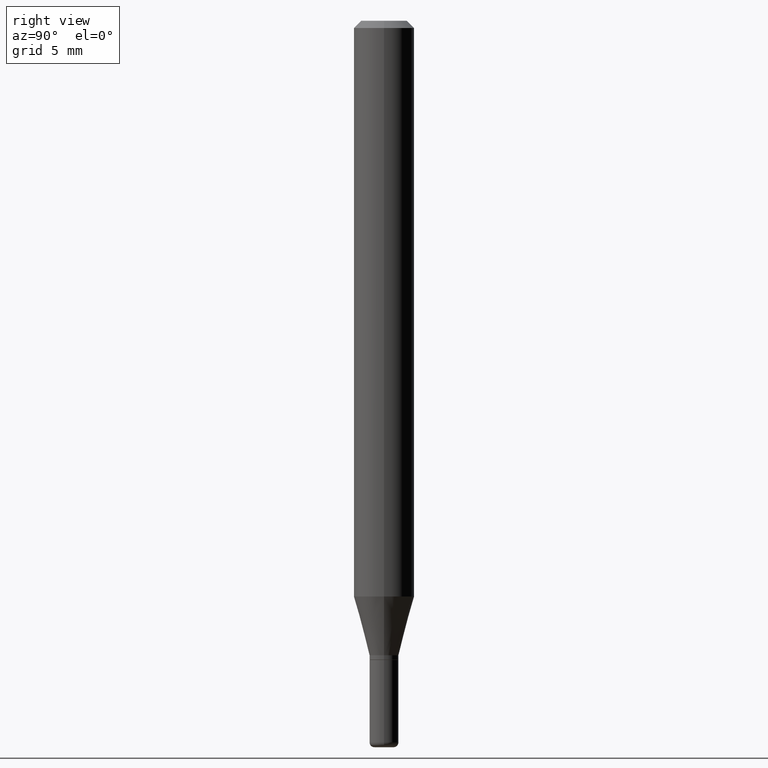
[diagram: clean part render]
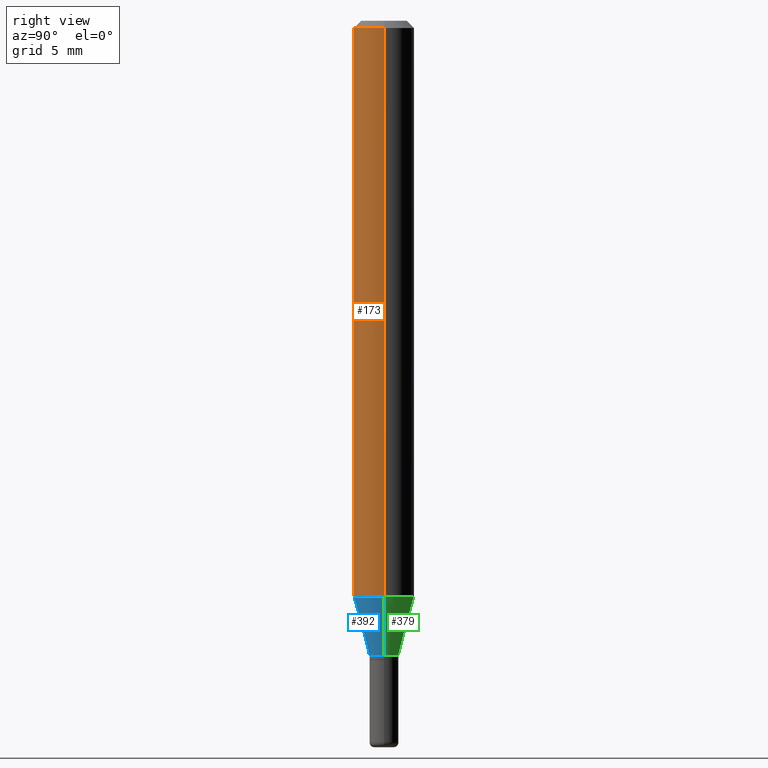
[diagram: same view with three faces highlighted in distinct colors, each labeled with its STEP entity id]
A machine part, right view with three faces highlighted in distinct colors.
Their STEP definitions:

[orange] entity #173 — the highlighted cylindrical surface (edge-blend (fillet) strip) has radius 1.5875 mm, axis along (-0, 0, 1).
#17 = EDGE_CURVE ( 'NONE', #500, #226, #242, .T. ) ;
#21 = CARTESIAN_POINT ( 'NONE',  ( 0.000000000000000000, 0.000000000000000000, 0.000000000000000000 ) ) ;
#32 = AXIS2_PLACEMENT_3D ( 'NONE', #431, #471, #160 ) ;
#49 = AXIS2_PLACEMENT_3D ( 'NONE', #374, #295, #333 ) ;
#63 = VERTEX_POINT ( 'NONE', #395 ) ;
#91 = DIRECTION ( 'NONE',  ( -2.445468806185136877E-29, 3.491481338843145188E-15, 1.000000000000000000 ) ) ;
#138 = CARTESIAN_POINT ( 'NONE',  ( 0.06250000000000000000, -4.364351673553916694E-16, 3.047610484872459871E-30 ) ) ;
#145 = ORIENTED_EDGE ( 'NONE', *, *, #17, .F. ) ;
#158 = EDGE_CURVE ( 'NONE', #340, #63, #317, .T. ) ;
#160 = DIRECTION ( 'NONE',  ( 1.000000000000000000, -6.982962677686266711E-15, 0.000000000000000000 ) ) ;
#163 = ORIENTED_EDGE ( 'NONE', *, *, #158, .T. ) ;
#173 = ADVANCED_FACE ( 'NONE', ( #370 ), #260, .T. ) ;
#198 = EDGE_LOOP ( 'NONE', ( #386, #163, #384, #145 ) ) ;
#226 = VERTEX_POINT ( 'NONE', #330 ) ;
#242 = CIRCLE ( 'NONE', #32, 0.06250000000000000000 ) ;
#256 = DIRECTION ( 'NONE',  ( -2.445468806185136877E-29, 3.491481338843145188E-15, 1.000000000000000000 ) ) ;
#260 = CYLINDRICAL_SURFACE ( 'NONE', #354, 0.06250000000000000000 ) ;
#266 = CARTESIAN_POINT ( 'NONE',  ( -0.06250000000000000000, -3.706263807151618616E-15, -1.188708348754011546 ) ) ;
#273 = VECTOR ( 'NONE', #91, 39.37007874015748143 ) ;
#295 = DIRECTION ( 'NONE',  ( -2.445468806185136597E-29, 3.491481338843145583E-15, 1.000000000000000000 ) ) ;
#317 = CIRCLE ( 'NONE', #49, 0.06250000000000000000 ) ;
#330 = CARTESIAN_POINT ( 'NONE',  ( 0.06250000000000000000, -4.888073874380378612E-16, -0.01499999999999970281 ) ) ;
#333 = DIRECTION ( 'NONE',  ( 1.000000000000000000, -6.982962677686270655E-15, 0.000000000000000000 ) ) ;
#340 = VERTEX_POINT ( 'NONE', #266 ) ;
#354 = AXIS2_PLACEMENT_3D ( 'NONE', #21, #507, #367 ) ;
#356 = CARTESIAN_POINT ( 'NONE',  ( -0.06250000000000000000, -1.657273408692100948E-15, -0.01499999999999970281 ) ) ;
#367 = DIRECTION ( 'NONE',  ( 1.000000000000000000, -6.982962677686266711E-15, 4.876176775795935793E-29 ) ) ;
#370 = FACE_OUTER_BOUND ( 'NONE', #198, .T. ) ;
#374 = CARTESIAN_POINT ( 'NONE',  ( 2.906949186529777550E-29, -4.150353017001681232E-15, -1.188708348754011546 ) ) ;
#384 = ORIENTED_EDGE ( 'NONE', *, *, #412, .T. ) ;
#386 = ORIENTED_EDGE ( 'NONE', *, *, #396, .F. ) ;
#395 = CARTESIAN_POINT ( 'NONE',  ( 0.06250000000000000000, -4.586788184357073690E-15, -1.188708348754011546 ) ) ;
#396 = EDGE_CURVE ( 'NONE', #340, #500, #456, .T. ) ;
#412 = EDGE_CURVE ( 'NONE', #63, #226, #484, .T. ) ;
#431 = CARTESIAN_POINT ( 'NONE',  ( 3.668203209277632395E-31, -5.237222008264614861E-17, -0.01499999999999970281 ) ) ;
#448 = VECTOR ( 'NONE', #256, 39.37007874015748143 ) ;
#456 = LINE ( 'NONE', #461, #448 ) ;
#461 = CARTESIAN_POINT ( 'NONE',  ( -0.06250000000000000000, 4.440892098500626162E-16, -3.074334431409316114E-30 ) ) ;
#471 = DIRECTION ( 'NONE',  ( -2.445468806185136597E-29, 3.491481338843145583E-15, 1.000000000000000000 ) ) ;
#484 = LINE ( 'NONE', #138, #273 ) ;
#500 = VERTEX_POINT ( 'NONE', #356 ) ;
#507 = DIRECTION ( 'NONE',  ( -2.445468806185136597E-29, 3.491481338843145583E-15, 1.000000000000000000 ) ) ;

[blue] entity #392 — the highlighted conical surface has half-angle 15 deg.
#22 = DIRECTION ( 'NONE',  ( -2.445468806185136597E-29, 3.491481338843145583E-15, 1.000000000000000000 ) ) ;
#27 = ORIENTED_EDGE ( 'NONE', *, *, #305, .T. ) ;
#36 = EDGE_CURVE ( 'NONE', #195, #63, #255, .T. ) ;
#43 = AXIS2_PLACEMENT_3D ( 'NONE', #181, #499, #400 ) ;
#49 = AXIS2_PLACEMENT_3D ( 'NONE', #374, #295, #333 ) ;
#56 = ORIENTED_EDGE ( 'NONE', *, *, #36, .T. ) ;
#63 = VERTEX_POINT ( 'NONE', #395 ) ;
#101 = CARTESIAN_POINT ( 'NONE',  ( 0.02999999999999995726, -4.783329434215109894E-15, -1.310000000000000275 ) ) ;
#114 = CONICAL_SURFACE ( 'NONE', #378, 0.02999999999999995726, 0.2617993877991494633 ) ;
#158 = EDGE_CURVE ( 'NONE', #340, #63, #317, .T. ) ;
#179 = EDGE_LOOP ( 'NONE', ( #415, #27, #56, #462 ) ) ;
#181 = CARTESIAN_POINT ( 'NONE',  ( 3.203564136102529457E-29, -4.573840553884521577E-15, -1.310000000000000275 ) ) ;
#185 = CARTESIAN_POINT ( 'NONE',  ( 3.203564136102529457E-29, -4.573840553884521577E-15, -1.310000000000000275 ) ) ;
#187 = DIRECTION ( 'NONE',  ( 1.000000000000000000, -6.982962677686277755E-15, 0.000000000000000000 ) ) ;
#195 = VERTEX_POINT ( 'NONE', #101 ) ;
#244 = VECTOR ( 'NONE', #263, 39.37007874015748854 ) ;
#255 = LINE ( 'NONE', #440, #441 ) ;
#263 = DIRECTION ( 'NONE',  ( -0.2588190451025207395, 5.211531920934546309E-15, 0.9659258262890682012 ) ) ;
#266 = CARTESIAN_POINT ( 'NONE',  ( -0.06250000000000000000, -3.706263807151618616E-15, -1.188708348754011546 ) ) ;
#295 = DIRECTION ( 'NONE',  ( -2.445468806185136597E-29, 3.491481338843145583E-15, 1.000000000000000000 ) ) ;
#297 = LINE ( 'NONE', #328, #244 ) ;
#305 = EDGE_CURVE ( 'NONE', #352, #195, #511, .T. ) ;
#317 = CIRCLE ( 'NONE', #49, 0.06250000000000000000 ) ;
#322 = DIRECTION ( 'NONE',  ( 0.2588190451025207395, 1.565188264969626109E-15, 0.9659258262890682012 ) ) ;
#328 = CARTESIAN_POINT ( 'NONE',  ( -0.02999999999999995726, -4.360677733156492121E-15, -1.310000000000000275 ) ) ;
#333 = DIRECTION ( 'NONE',  ( 1.000000000000000000, -6.982962677686270655E-15, 0.000000000000000000 ) ) ;
#340 = VERTEX_POINT ( 'NONE', #266 ) ;
#352 = VERTEX_POINT ( 'NONE', #371 ) ;
#371 = CARTESIAN_POINT ( 'NONE',  ( -0.02999999999999995726, -4.033470770154055368E-15, -1.310000000000000275 ) ) ;
#374 = CARTESIAN_POINT ( 'NONE',  ( 2.906949186529777550E-29, -4.150353017001681232E-15, -1.188708348754011546 ) ) ;
#375 = FACE_OUTER_BOUND ( 'NONE', #179, .T. ) ;
#378 = AXIS2_PLACEMENT_3D ( 'NONE', #185, #22, #187 ) ;
#392 = ADVANCED_FACE ( 'NONE', ( #375 ), #114, .T. ) ;
#395 = CARTESIAN_POINT ( 'NONE',  ( 0.06250000000000000000, -4.586788184357073690E-15, -1.188708348754011546 ) ) ;
#400 = DIRECTION ( 'NONE',  ( 1.000000000000000000, -6.982962677686277755E-15, 0.000000000000000000 ) ) ;
#415 = ORIENTED_EDGE ( 'NONE', *, *, #416, .F. ) ;
#416 = EDGE_CURVE ( 'NONE', #352, #340, #297, .T. ) ;
#440 = CARTESIAN_POINT ( 'NONE',  ( 0.02999999999999995726, -4.783329434215109894E-15, -1.310000000000000275 ) ) ;
#441 = VECTOR ( 'NONE', #322, 39.37007874015748854 ) ;
#462 = ORIENTED_EDGE ( 'NONE', *, *, #158, .F. ) ;
#499 = DIRECTION ( 'NONE',  ( -2.445468806185136597E-29, 3.491481338843145583E-15, 1.000000000000000000 ) ) ;
#511 = CIRCLE ( 'NONE', #43, 0.02999999999999995726 ) ;

[green] entity #379 — the highlighted conical surface has half-angle 15 deg.
#16 = FACE_OUTER_BOUND ( 'NONE', #494, .T. ) ;
#36 = EDGE_CURVE ( 'NONE', #195, #63, #255, .T. ) ;
#63 = VERTEX_POINT ( 'NONE', #395 ) ;
#68 = DIRECTION ( 'NONE',  ( 1.000000000000000000, -6.982962677686270655E-15, 0.000000000000000000 ) ) ;
#98 = AXIS2_PLACEMENT_3D ( 'NONE', #259, #489, #414 ) ;
#101 = CARTESIAN_POINT ( 'NONE',  ( 0.02999999999999995726, -4.783329434215109894E-15, -1.310000000000000275 ) ) ;
#195 = VERTEX_POINT ( 'NONE', #101 ) ;
#196 = CARTESIAN_POINT ( 'NONE',  ( 2.906949186529777550E-29, -4.150353017001681232E-15, -1.188708348754011546 ) ) ;
#214 = CIRCLE ( 'NONE', #98, 0.02999999999999995726 ) ;
#221 = DIRECTION ( 'NONE',  ( -2.445468806185136597E-29, 3.491481338843145583E-15, 1.000000000000000000 ) ) ;
#229 = DIRECTION ( 'NONE',  ( 1.000000000000000000, -6.982962677686277755E-15, 0.000000000000000000 ) ) ;
#244 = VECTOR ( 'NONE', #263, 39.37007874015748854 ) ;
#247 = EDGE_CURVE ( 'NONE', #63, #340, #292, .T. ) ;
#255 = LINE ( 'NONE', #440, #441 ) ;
#259 = CARTESIAN_POINT ( 'NONE',  ( 3.203564136102529457E-29, -4.573840553884521577E-15, -1.310000000000000275 ) ) ;
#263 = DIRECTION ( 'NONE',  ( -0.2588190451025207395, 5.211531920934546309E-15, 0.9659258262890682012 ) ) ;
#266 = CARTESIAN_POINT ( 'NONE',  ( -0.06250000000000000000, -3.706263807151618616E-15, -1.188708348754011546 ) ) ;
#292 = CIRCLE ( 'NONE', #324, 0.06250000000000000000 ) ;
#297 = LINE ( 'NONE', #328, #244 ) ;
#322 = DIRECTION ( 'NONE',  ( 0.2588190451025207395, 1.565188264969626109E-15, 0.9659258262890682012 ) ) ;
#324 = AXIS2_PLACEMENT_3D ( 'NONE', #196, #460, #68 ) ;
#328 = CARTESIAN_POINT ( 'NONE',  ( -0.02999999999999995726, -4.360677733156492121E-15, -1.310000000000000275 ) ) ;
#335 = ORIENTED_EDGE ( 'NONE', *, *, #36, .F. ) ;
#340 = VERTEX_POINT ( 'NONE', #266 ) ;
#352 = VERTEX_POINT ( 'NONE', #371 ) ;
#361 = EDGE_CURVE ( 'NONE', #195, #352, #214, .T. ) ;
#369 = ORIENTED_EDGE ( 'NONE', *, *, #247, .F. ) ;
#371 = CARTESIAN_POINT ( 'NONE',  ( -0.02999999999999995726, -4.033470770154055368E-15, -1.310000000000000275 ) ) ;
#379 = ADVANCED_FACE ( 'NONE', ( #16 ), #422, .T. ) ;
#395 = CARTESIAN_POINT ( 'NONE',  ( 0.06250000000000000000, -4.586788184357073690E-15, -1.188708348754011546 ) ) ;
#403 = CARTESIAN_POINT ( 'NONE',  ( 3.203564136102529457E-29, -4.573840553884521577E-15, -1.310000000000000275 ) ) ;
#414 = DIRECTION ( 'NONE',  ( 1.000000000000000000, -6.982962677686277755E-15, 0.000000000000000000 ) ) ;
#416 = EDGE_CURVE ( 'NONE', #352, #340, #297, .T. ) ;
#422 = CONICAL_SURFACE ( 'NONE', #472, 0.02999999999999995726, 0.2617993877991494633 ) ;
#424 = ORIENTED_EDGE ( 'NONE', *, *, #416, .T. ) ;
#440 = CARTESIAN_POINT ( 'NONE',  ( 0.02999999999999995726, -4.783329434215109894E-15, -1.310000000000000275 ) ) ;
#441 = VECTOR ( 'NONE', #322, 39.37007874015748854 ) ;
#460 = DIRECTION ( 'NONE',  ( -2.445468806185136597E-29, 3.491481338843145583E-15, 1.000000000000000000 ) ) ;
#472 = AXIS2_PLACEMENT_3D ( 'NONE', #403, #221, #229 ) ;
#489 = DIRECTION ( 'NONE',  ( -2.445468806185136597E-29, 3.491481338843145583E-15, 1.000000000000000000 ) ) ;
#490 = ORIENTED_EDGE ( 'NONE', *, *, #361, .T. ) ;
#494 = EDGE_LOOP ( 'NONE', ( #490, #424, #369, #335 ) ) ;